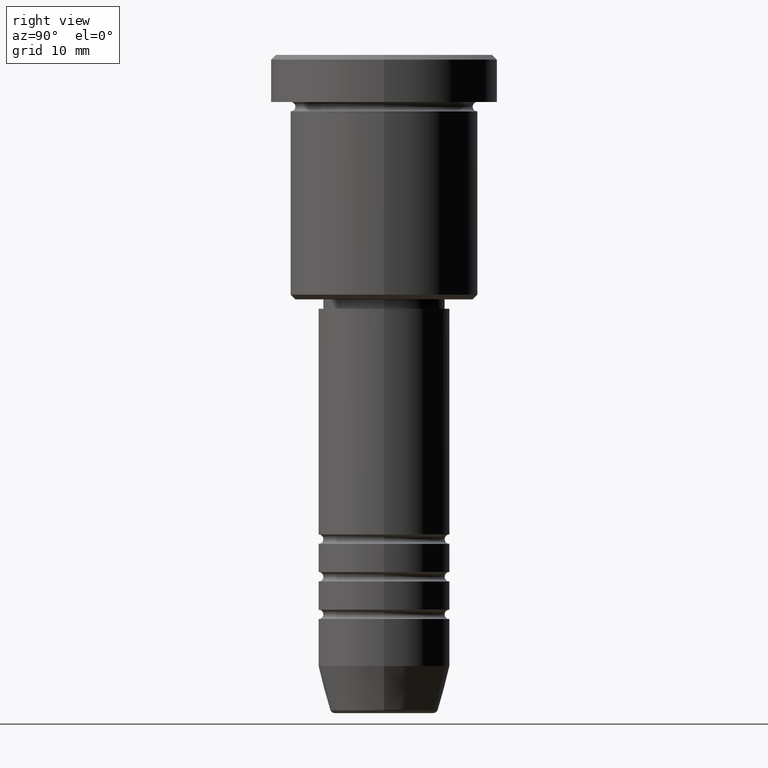
[diagram: clean part render]
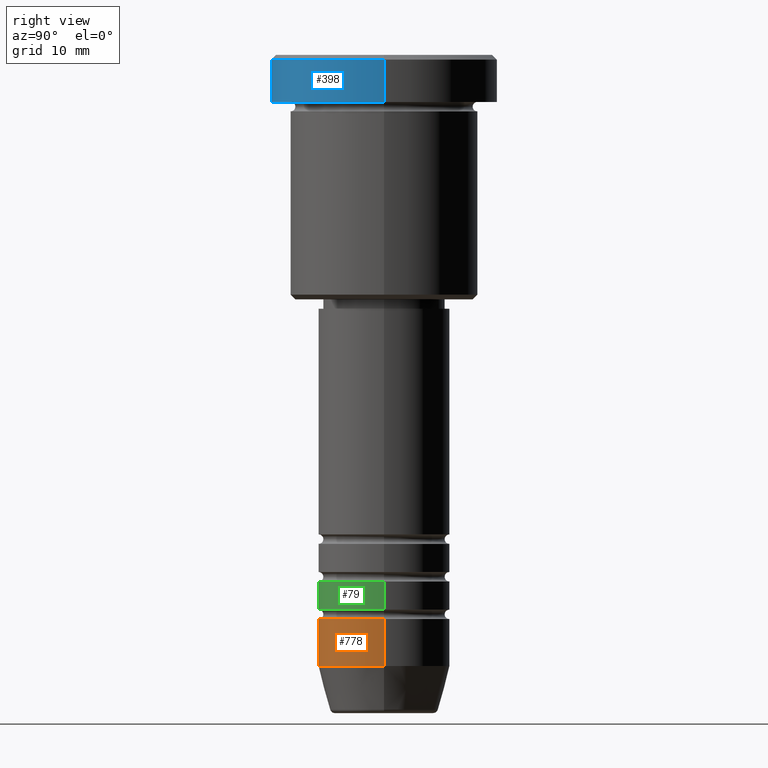
[diagram: same view with three faces highlighted in distinct colors, each labeled with its STEP entity id]
A machine part, right view with three faces highlighted in distinct colors.
Their STEP definitions:

[orange] entity #778 — the highlighted cylindrical surface (partial cylindrical patch) has radius 7 mm, axis along (-0, -0, 1).
#4 = CARTESIAN_POINT ( 'NONE',  ( 0.000000000000000000, 0.000000000000000000, 0.000000000000000000 ) ) ;
#15 = DIRECTION ( 'NONE',  ( -0.000000000000000000, -0.000000000000000000, 1.000000000000000000 ) ) ;
#103 = DIRECTION ( 'NONE',  ( -0.000000000000000000, -0.000000000000000000, 1.000000000000000000 ) ) ;
#123 = EDGE_CURVE ( 'NONE', #250, #924, #703, .T. ) ;
#178 = ORIENTED_EDGE ( 'NONE', *, *, #355, .T. ) ;
#193 = ORIENTED_EDGE ( 'NONE', *, *, #276, .T. ) ;
#235 = VECTOR ( 'NONE', #495, 1000.000000000000000 ) ;
#245 = DIRECTION ( 'NONE',  ( 1.000000000000000000, 0.000000000000000000, 0.000000000000000000 ) ) ;
#250 = VERTEX_POINT ( 'NONE', #704 ) ;
#276 = EDGE_CURVE ( 'NONE', #250, #400, #837, .T. ) ;
#330 = ORIENTED_EDGE ( 'NONE', *, *, #575, .F. ) ;
#343 = LINE ( 'NONE', #1014, #349 ) ;
#349 = VECTOR ( 'NONE', #103, 1000.000000000000000 ) ;
#355 = EDGE_CURVE ( 'NONE', #400, #632, #343, .T. ) ;
#360 = DIRECTION ( 'NONE',  ( 1.000000000000000000, 0.000000000000000000, 0.000000000000000000 ) ) ;
#364 = DIRECTION ( 'NONE',  ( 1.000000000000000000, 0.000000000000000000, 0.000000000000000000 ) ) ;
#400 = VERTEX_POINT ( 'NONE', #481 ) ;
#402 = AXIS2_PLACEMENT_3D ( 'NONE', #982, #15, #245 ) ;
#436 = CARTESIAN_POINT ( 'NONE',  ( 0.000000000000000000, 0.000000000000000000, -60.00000000000000711 ) ) ;
#448 = FACE_OUTER_BOUND ( 'NONE', #739, .T. ) ;
#481 = CARTESIAN_POINT ( 'NONE',  ( 7.000000000000000888, 0.000000000000000000, -65.00000000000000000 ) ) ;
#495 = DIRECTION ( 'NONE',  ( -0.000000000000000000, -0.000000000000000000, 1.000000000000000000 ) ) ;
#543 = DIRECTION ( 'NONE',  ( -0.000000000000000000, -0.000000000000000000, 1.000000000000000000 ) ) ;
#575 = EDGE_CURVE ( 'NONE', #924, #632, #948, .T. ) ;
#632 = VERTEX_POINT ( 'NONE', #939 ) ;
#703 = LINE ( 'NONE', #784, #235 ) ;
#704 = CARTESIAN_POINT ( 'NONE',  ( -7.000000000000000888, 8.572527594031474176E-16, -65.00000000000000000 ) ) ;
#739 = EDGE_LOOP ( 'NONE', ( #796, #193, #178, #330 ) ) ;
#765 = AXIS2_PLACEMENT_3D ( 'NONE', #436, #543, #364 ) ;
#778 = ADVANCED_FACE ( 'NONE', ( #448 ), #1113, .T. ) ;
#784 = CARTESIAN_POINT ( 'NONE',  ( -7.000000000000000888, 8.572527594031474176E-16, 0.000000000000000000 ) ) ;
#796 = ORIENTED_EDGE ( 'NONE', *, *, #123, .F. ) ;
#837 = CIRCLE ( 'NONE', #402, 7.000000000000000888 ) ;
#892 = AXIS2_PLACEMENT_3D ( 'NONE', #4, #1006, #360 ) ;
#924 = VERTEX_POINT ( 'NONE', #958 ) ;
#939 = CARTESIAN_POINT ( 'NONE',  ( 7.000000000000000000, 0.000000000000000000, -60.00000000000000711 ) ) ;
#948 = CIRCLE ( 'NONE', #765, 7.000000000000000000 ) ;
#958 = CARTESIAN_POINT ( 'NONE',  ( -7.000000000000000000, 8.572527594031473190E-16, -60.00000000000000711 ) ) ;
#982 = CARTESIAN_POINT ( 'NONE',  ( 0.000000000000000000, 0.000000000000000000, -65.00000000000000000 ) ) ;
#1006 = DIRECTION ( 'NONE',  ( -0.000000000000000000, -0.000000000000000000, 1.000000000000000000 ) ) ;
#1014 = CARTESIAN_POINT ( 'NONE',  ( 7.000000000000000888, 0.000000000000000000, 0.000000000000000000 ) ) ;
#1113 = CYLINDRICAL_SURFACE ( 'NONE', #892, 7.000000000000000888 ) ;

[blue] entity #398 — the highlighted cylindrical surface (partial cylindrical patch) has radius 12 mm, axis along (-0, -0, 1).
#6 = CARTESIAN_POINT ( 'NONE',  ( 12.00000000000000000, 0.000000000000000000, 0.000000000000000000 ) ) ;
#17 = DIRECTION ( 'NONE',  ( -0.000000000000000000, -0.000000000000000000, 1.000000000000000000 ) ) ;
#29 = CARTESIAN_POINT ( 'NONE',  ( -12.00000000000000000, 1.469576158976823947E-15, -5.000000000000000000 ) ) ;
#36 = AXIS2_PLACEMENT_3D ( 'NONE', #1016, #659, #462 ) ;
#140 = AXIS2_PLACEMENT_3D ( 'NONE', #603, #594, #1162 ) ;
#202 = LINE ( 'NONE', #6, #1046 ) ;
#222 = AXIS2_PLACEMENT_3D ( 'NONE', #473, #674, #574 ) ;
#264 = ORIENTED_EDGE ( 'NONE', *, *, #1168, .T. ) ;
#287 = FACE_OUTER_BOUND ( 'NONE', #864, .T. ) ;
#302 = CYLINDRICAL_SURFACE ( 'NONE', #222, 12.00000000000000000 ) ;
#307 = EDGE_CURVE ( 'NONE', #906, #519, #496, .T. ) ;
#319 = DIRECTION ( 'NONE',  ( -0.000000000000000000, -0.000000000000000000, 1.000000000000000000 ) ) ;
#398 = ADVANCED_FACE ( 'NONE', ( #287 ), #302, .T. ) ;
#423 = CIRCLE ( 'NONE', #36, 12.00000000000000000 ) ;
#437 = VERTEX_POINT ( 'NONE', #29 ) ;
#462 = DIRECTION ( 'NONE',  ( 1.000000000000000000, 0.000000000000000000, 0.000000000000000000 ) ) ;
#473 = CARTESIAN_POINT ( 'NONE',  ( 0.000000000000000000, 0.000000000000000000, 0.000000000000000000 ) ) ;
#496 = CIRCLE ( 'NONE', #140, 12.00000000000000000 ) ;
#516 = CARTESIAN_POINT ( 'NONE',  ( -12.00000000000000000, 1.469576158976823947E-15, -0.4999999999999917843 ) ) ;
#519 = VERTEX_POINT ( 'NONE', #516 ) ;
#574 = DIRECTION ( 'NONE',  ( 1.000000000000000000, 0.000000000000000000, 0.000000000000000000 ) ) ;
#594 = DIRECTION ( 'NONE',  ( 0.000000000000000000, 0.000000000000000000, -1.000000000000000000 ) ) ;
#600 = EDGE_CURVE ( 'NONE', #437, #519, #1054, .T. ) ;
#603 = CARTESIAN_POINT ( 'NONE',  ( 0.000000000000000000, 0.000000000000000000, -0.4999999999999917843 ) ) ;
#659 = DIRECTION ( 'NONE',  ( -0.000000000000000000, -0.000000000000000000, 1.000000000000000000 ) ) ;
#669 = VECTOR ( 'NONE', #319, 1000.000000000000000 ) ;
#674 = DIRECTION ( 'NONE',  ( -0.000000000000000000, -0.000000000000000000, 1.000000000000000000 ) ) ;
#698 = CARTESIAN_POINT ( 'NONE',  ( -12.00000000000000000, 1.469576158976823947E-15, 0.000000000000000000 ) ) ;
#715 = ORIENTED_EDGE ( 'NONE', *, *, #770, .T. ) ;
#770 = EDGE_CURVE ( 'NONE', #437, #942, #423, .T. ) ;
#802 = ORIENTED_EDGE ( 'NONE', *, *, #600, .F. ) ;
#864 = EDGE_LOOP ( 'NONE', ( #802, #715, #264, #901 ) ) ;
#873 = CARTESIAN_POINT ( 'NONE',  ( 12.00000000000000000, 0.000000000000000000, -0.4999999999999917843 ) ) ;
#901 = ORIENTED_EDGE ( 'NONE', *, *, #307, .T. ) ;
#906 = VERTEX_POINT ( 'NONE', #873 ) ;
#942 = VERTEX_POINT ( 'NONE', #1079 ) ;
#1016 = CARTESIAN_POINT ( 'NONE',  ( 0.000000000000000000, 0.000000000000000000, -5.000000000000000000 ) ) ;
#1046 = VECTOR ( 'NONE', #17, 1000.000000000000000 ) ;
#1054 = LINE ( 'NONE', #698, #669 ) ;
#1079 = CARTESIAN_POINT ( 'NONE',  ( 12.00000000000000000, 0.000000000000000000, -5.000000000000000000 ) ) ;
#1162 = DIRECTION ( 'NONE',  ( 1.000000000000000000, 0.000000000000000000, 0.000000000000000000 ) ) ;
#1168 = EDGE_CURVE ( 'NONE', #942, #906, #202, .T. ) ;

[green] entity #79 — the highlighted cylindrical surface (partial cylindrical patch) has radius 7 mm, axis along (-0, -0, 1).
#23 = DIRECTION ( 'NONE',  ( -0.000000000000000000, -0.000000000000000000, 1.000000000000000000 ) ) ;
#25 = CARTESIAN_POINT ( 'NONE',  ( 0.000000000000000000, 0.000000000000000000, -55.99999999999999289 ) ) ;
#28 = VERTEX_POINT ( 'NONE', #805 ) ;
#79 = ADVANCED_FACE ( 'NONE', ( #82 ), #441, .T. ) ;
#82 = FACE_OUTER_BOUND ( 'NONE', #1009, .T. ) ;
#92 = ORIENTED_EDGE ( 'NONE', *, *, #1064, .F. ) ;
#115 = CARTESIAN_POINT ( 'NONE',  ( 7.000000000000000888, 0.000000000000000000, 0.000000000000000000 ) ) ;
#146 = EDGE_CURVE ( 'NONE', #738, #28, #761, .T. ) ;
#152 = CARTESIAN_POINT ( 'NONE',  ( 0.000000000000000000, 0.000000000000000000, -58.99999999999999289 ) ) ;
#195 = CIRCLE ( 'NONE', #860, 7.000000000000000000 ) ;
#289 = CARTESIAN_POINT ( 'NONE',  ( 7.000000000000000000, 0.000000000000000000, -55.99999999999999289 ) ) ;
#294 = DIRECTION ( 'NONE',  ( -0.000000000000000000, -0.000000000000000000, 1.000000000000000000 ) ) ;
#351 = CARTESIAN_POINT ( 'NONE',  ( 0.000000000000000000, 0.000000000000000000, 0.000000000000000000 ) ) ;
#424 = DIRECTION ( 'NONE',  ( -0.000000000000000000, -0.000000000000000000, 1.000000000000000000 ) ) ;
#441 = CYLINDRICAL_SURFACE ( 'NONE', #545, 7.000000000000000888 ) ;
#465 = EDGE_CURVE ( 'NONE', #28, #1138, #930, .T. ) ;
#475 = ORIENTED_EDGE ( 'NONE', *, *, #146, .T. ) ;
#506 = DIRECTION ( 'NONE',  ( -0.000000000000000000, -0.000000000000000000, 1.000000000000000000 ) ) ;
#512 = CARTESIAN_POINT ( 'NONE',  ( -7.000000000000000888, 8.572527594031474176E-16, 0.000000000000000000 ) ) ;
#545 = AXIS2_PLACEMENT_3D ( 'NONE', #351, #730, #880 ) ;
#560 = CARTESIAN_POINT ( 'NONE',  ( -7.000000000000000888, 8.572527594031474176E-16, -58.99999999999999289 ) ) ;
#608 = DIRECTION ( 'NONE',  ( 1.000000000000000000, 0.000000000000000000, 0.000000000000000000 ) ) ;
#623 = VERTEX_POINT ( 'NONE', #1157 ) ;
#645 = ORIENTED_EDGE ( 'NONE', *, *, #465, .T. ) ;
#730 = DIRECTION ( 'NONE',  ( -0.000000000000000000, -0.000000000000000000, 1.000000000000000000 ) ) ;
#738 = VERTEX_POINT ( 'NONE', #560 ) ;
#761 = CIRCLE ( 'NONE', #791, 7.000000000000000888 ) ;
#791 = AXIS2_PLACEMENT_3D ( 'NONE', #152, #506, #608 ) ;
#805 = CARTESIAN_POINT ( 'NONE',  ( 7.000000000000000888, 0.000000000000000000, -58.99999999999999289 ) ) ;
#860 = AXIS2_PLACEMENT_3D ( 'NONE', #25, #23, #1024 ) ;
#880 = DIRECTION ( 'NONE',  ( 1.000000000000000000, 0.000000000000000000, 0.000000000000000000 ) ) ;
#902 = ORIENTED_EDGE ( 'NONE', *, *, #994, .F. ) ;
#930 = LINE ( 'NONE', #115, #1012 ) ;
#965 = VECTOR ( 'NONE', #424, 1000.000000000000000 ) ;
#972 = LINE ( 'NONE', #512, #965 ) ;
#994 = EDGE_CURVE ( 'NONE', #738, #623, #972, .T. ) ;
#1009 = EDGE_LOOP ( 'NONE', ( #902, #475, #645, #92 ) ) ;
#1012 = VECTOR ( 'NONE', #294, 1000.000000000000000 ) ;
#1024 = DIRECTION ( 'NONE',  ( 1.000000000000000000, 0.000000000000000000, 0.000000000000000000 ) ) ;
#1064 = EDGE_CURVE ( 'NONE', #623, #1138, #195, .T. ) ;
#1138 = VERTEX_POINT ( 'NONE', #289 ) ;
#1157 = CARTESIAN_POINT ( 'NONE',  ( -7.000000000000000000, 8.572527594031473190E-16, -55.99999999999999289 ) ) ;